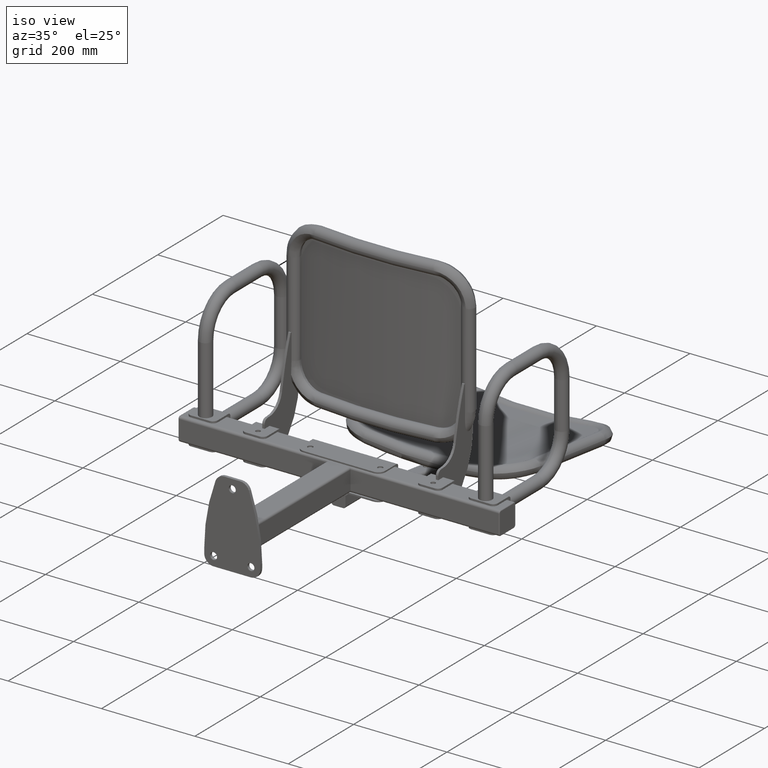
[diagram: clean part render]
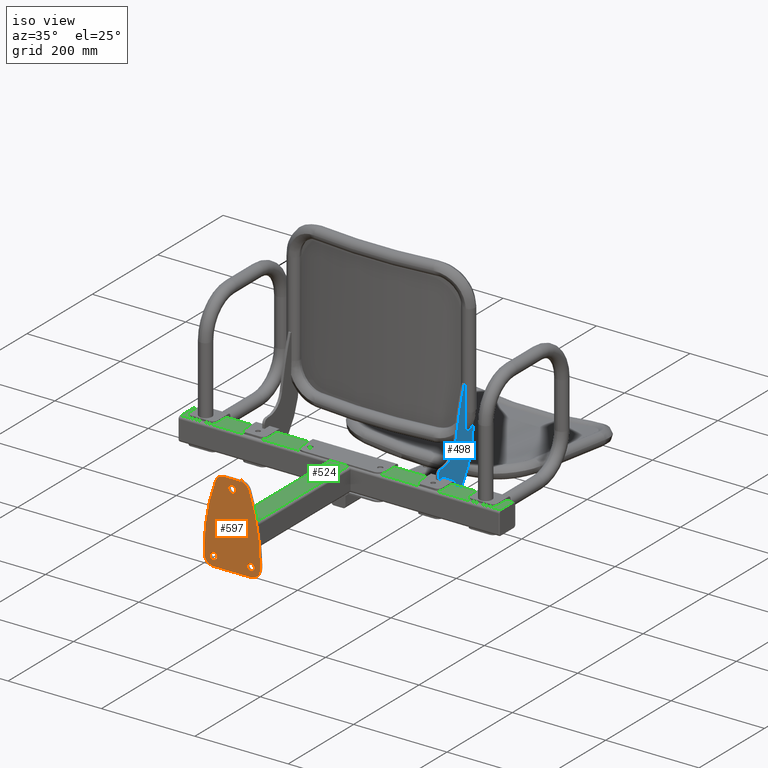
[diagram: same view with three faces highlighted in distinct colors, each labeled with its STEP entity id]
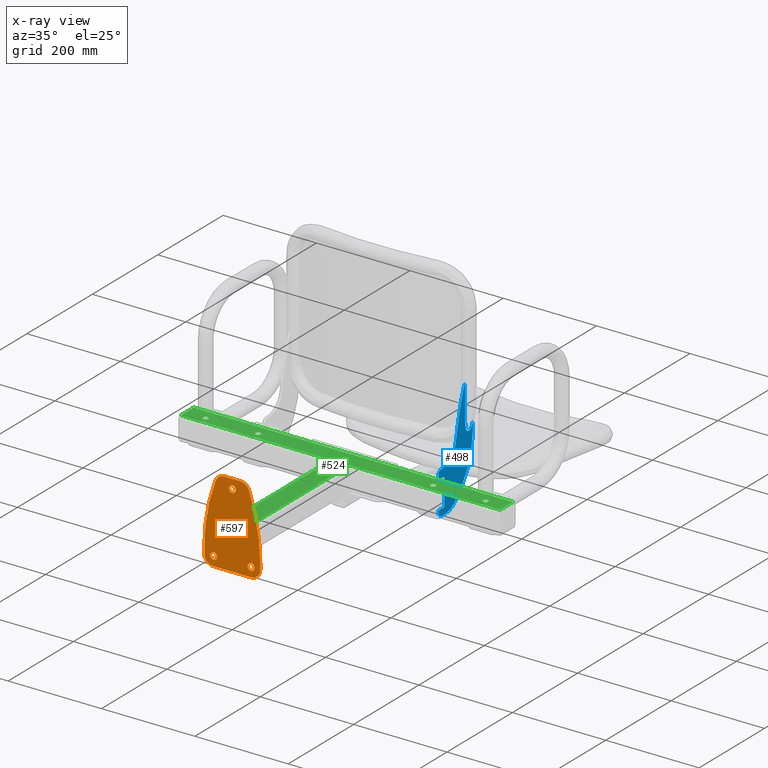
[diagram: x-ray of the same camera — body ghosted, the three highlighted faces saturated]
A machine part, iso view with three faces highlighted in distinct colors.
The next image is the same camera in x-ray (body ghosted, the three faces saturated) — at least one of them is partly hidden behind the body in this view.
Their STEP definitions:

[orange] entity #597 — the highlighted planar face has unit normal (0, -1, 0).
#281 = ORIENTED_EDGE ( 'NONE', *, *, #2310, .T. ) ;
#287 = ORIENTED_EDGE ( 'NONE', *, *, #15020, .F. ) ;
#305 = ORIENTED_EDGE ( 'NONE', *, *, #15016, .F. ) ;
#307 = ORIENTED_EDGE ( 'NONE', *, *, #15019, .T. ) ;
#316 = ORIENTED_EDGE ( 'NONE', *, *, #2320, .F. ) ;
#332 = ORIENTED_EDGE ( 'NONE', *, *, #11711, .F. ) ;
#333 = ORIENTED_EDGE ( 'NONE', *, *, #2321, .F. ) ;
#334 = ORIENTED_EDGE ( 'NONE', *, *, #15021, .F. ) ;
#335 = ORIENTED_EDGE ( 'NONE', *, *, #15023, .F. ) ;
#340 = ORIENTED_EDGE ( 'NONE', *, *, #11737, .F. ) ;
#348 = ORIENTED_EDGE ( 'NONE', *, *, #2309, .T. ) ;
#349 = ORIENTED_EDGE ( 'NONE', *, *, #2306, .F. ) ;
#356 = ORIENTED_EDGE ( 'NONE', *, *, #2305, .T. ) ;
#358 = ORIENTED_EDGE ( 'NONE', *, *, #2315, .F. ) ;
#361 = ORIENTED_EDGE ( 'NONE', *, *, #15832, .F. ) ;
#362 = ORIENTED_EDGE ( 'NONE', *, *, #15022, .F. ) ;
#597 = ADVANCED_FACE ( 'NONE', ( #1809, #1811, #1804, #1810 ), #8171, .T. ) ;
#824 = CIRCLE ( 'NONE', #15550, 7.500000000000000000 ) ;
#993 = AXIS2_PLACEMENT_3D ( 'NONE', #4835, #4836, #4837 ) ;
#996 = AXIS2_PLACEMENT_3D ( 'NONE', #4832, #4833, #4834 ) ;
#999 = AXIS2_PLACEMENT_3D ( 'NONE', #4827, #4828, #4829 ) ;
#1804 = FACE_BOUND ( 'NONE', #11912, .T. ) ;
#1809 = FACE_BOUND ( 'NONE', #11874, .T. ) ;
#1810 = FACE_OUTER_BOUND ( 'NONE', #11909, .T. ) ;
#1811 = FACE_BOUND ( 'NONE', #11884, .T. ) ;
#2305 = EDGE_CURVE ( 'NONE', #10431, #10420, #6522, .T. ) ;
#2306 = EDGE_CURVE ( 'NONE', #10417, #10347, #6529, .T. ) ;
#2309 = EDGE_CURVE ( 'NONE', #10392, #10347, #6531, .T. ) ;
#2310 = EDGE_CURVE ( 'NONE', #10377, #10306, #6535, .T. ) ;
#2315 = EDGE_CURVE ( 'NONE', #10421, #10306, #6541, .T. ) ;
#2320 = EDGE_CURVE ( 'NONE', #10431, #10417, #6551, .T. ) ;
#2321 = EDGE_CURVE ( 'NONE', #10392, #10359, #6553, .T. ) ;
#3516 = CARTESIAN_POINT ( 'NONE',  ( -40.00000000000002800, 0.0000000000000000000, -39.99999999999996400 ) ) ;
#3517 = DIRECTION ( 'NONE',  ( -0.0000000000000000000, -1.000000000000000000, 0.0000000000000000000 ) ) ;
#3518 = DIRECTION ( 'NONE',  ( 0.0000000000000000000, 0.0000000000000000000, -1.000000000000000000 ) ) ;
#3520 = CARTESIAN_POINT ( 'NONE',  ( 339.9999999999999400, 0.0000000000000000000, -29.99999999999998600 ) ) ;
#3521 = DIRECTION ( 'NONE',  ( 0.0000000000000000000, 1.000000000000000000, -0.0000000000000000000 ) ) ;
#3522 = DIRECTION ( 'NONE',  ( 0.0000000000000000000, 0.0000000000000000000, -1.000000000000000000 ) ) ;
#3528 = CARTESIAN_POINT ( 'NONE',  ( -17.07142142714251800, 0.0000000000000000000, 100.0000000000000100 ) ) ;
#3529 = DIRECTION ( 'NONE',  ( -0.0000000000000000000, -1.000000000000000000, 0.0000000000000000000 ) ) ;
#3530 = DIRECTION ( 'NONE',  ( 0.0000000000000000000, 0.0000000000000000000, -1.000000000000000000 ) ) ;
#3531 = CARTESIAN_POINT ( 'NONE',  ( 40.00000000000003600, 0.0000000000000000000, -39.99999999999997900 ) ) ;
#3532 = DIRECTION ( 'NONE',  ( -0.0000000000000000000, -1.000000000000000000, 0.0000000000000000000 ) ) ;
#3533 = DIRECTION ( 'NONE',  ( 0.0000000000000000000, 0.0000000000000000000, -1.000000000000000000 ) ) ;
#3544 = CARTESIAN_POINT ( 'NONE',  ( 60.00000000000000000, 0.0000000000000000000, 120.0000000000000100 ) ) ;
#3546 = DIRECTION ( 'NONE',  ( 2.312964634635743000E-016, 0.0000000000000000000, -1.000000000000000000 ) ) ;
#3553 = CARTESIAN_POINT ( 'NONE',  ( -60.00000000000000000, 0.0000000000000000000, 120.0000000000000100 ) ) ;
#3554 = DIRECTION ( 'NONE',  ( 2.312964634635743000E-016, -0.0000000000000000000, 1.000000000000000000 ) ) ;
#3555 = CARTESIAN_POINT ( 'NONE',  ( 60.00000000000000000, 0.0000000000000000000, 120.0000000000000100 ) ) ;
#3556 = DIRECTION ( 'NONE',  ( 1.000000000000000000, -0.0000000000000000000, -0.0000000000000000000 ) ) ;
#4825 = CARTESIAN_POINT ( 'NONE',  ( 60.00000000000004300, 0.0000000000000000000, -59.99999999999998600 ) ) ;
#4826 = DIRECTION ( 'NONE',  ( -1.000000000000000000, 0.0000000000000000000, 0.0000000000000000000 ) ) ;
#4827 = CARTESIAN_POINT ( 'NONE',  ( -40.00000000000002800, 0.0000000000000000000, -39.99999999999996400 ) ) ;
#4828 = DIRECTION ( 'NONE',  ( -0.0000000000000000000, -1.000000000000000000, 0.0000000000000000000 ) ) ;
#4829 = DIRECTION ( 'NONE',  ( 0.0000000000000000000, 0.0000000000000000000, -1.000000000000000000 ) ) ;
#4832 = CARTESIAN_POINT ( 'NONE',  ( 17.07142142714251800, 0.0000000000000000000, 100.0000000000000100 ) ) ;
#4833 = DIRECTION ( 'NONE',  ( -0.0000000000000000000, -1.000000000000000000, 0.0000000000000000000 ) ) ;
#4834 = DIRECTION ( 'NONE',  ( 0.0000000000000000000, 0.0000000000000000000, -1.000000000000000000 ) ) ;
#4835 = CARTESIAN_POINT ( 'NONE',  ( -339.9999999999999400, 0.0000000000000000000, -29.99999999999998600 ) ) ;
#4836 = DIRECTION ( 'NONE',  ( 0.0000000000000000000, 1.000000000000000000, -0.0000000000000000000 ) ) ;
#4837 = DIRECTION ( 'NONE',  ( 2.636779683484746800E-015, 0.0000000000000000000, -1.000000000000000000 ) ) ;
#4840 = CARTESIAN_POINT ( 'NONE',  ( 0.0000000000000000000, 0.0000000000000000000, 100.0000000000000000 ) ) ;
#4841 = DIRECTION ( 'NONE',  ( -0.0000000000000000000, -1.000000000000000000, 0.0000000000000000000 ) ) ;
#4842 = DIRECTION ( 'NONE',  ( 0.0000000000000000000, 0.0000000000000000000, -1.000000000000000000 ) ) ;
#4845 = CARTESIAN_POINT ( 'NONE',  ( 40.00000000000003600, 0.0000000000000000000, -39.99999999999997900 ) ) ;
#4846 = DIRECTION ( 'NONE',  ( -0.0000000000000000000, -1.000000000000000000, 0.0000000000000000000 ) ) ;
#4847 = DIRECTION ( 'NONE',  ( 0.0000000000000000000, 0.0000000000000000000, -1.000000000000000000 ) ) ;
#6522 = CIRCLE ( 'NONE', #8637, 20.00000000000000400 ) ;
#6529 = CIRCLE ( 'NONE', #8638, 400.0000000000000000 ) ;
#6531 = CIRCLE ( 'NONE', #8640, 20.00000000000000400 ) ;
#6535 = CIRCLE ( 'NONE', #8641, 20.00000000000000400 ) ;
#6541 = LINE ( 'NONE', #3544, #6544 ) ;
#6544 = VECTOR ( 'NONE', #3546, 1000.000000000000000 ) ;
#6551 = LINE ( 'NONE', #3553, #6554 ) ;
#6553 = LINE ( 'NONE', #3555, #6556 ) ;
#6554 = VECTOR ( 'NONE', #3554, 1000.000000000000000 ) ;
#6556 = VECTOR ( 'NONE', #3556, 1000.000000000000000 ) ;
#6847 = CARTESIAN_POINT ( 'NONE',  ( 0.0000000000000000000, 0.0000000000000000000, 100.0000000000000000 ) ) ;
#6849 = DIRECTION ( 'NONE',  ( -0.0000000000000000000, -1.000000000000000000, 0.0000000000000000000 ) ) ;
#6850 = DIRECTION ( 'NONE',  ( 0.0000000000000000000, 0.0000000000000000000, -1.000000000000000000 ) ) ;
#7602 = CIRCLE ( 'NONE', #999, 7.500000000000000000 ) ;
#7611 = CIRCLE ( 'NONE', #996, 20.00000000000000400 ) ;
#7613 = LINE ( 'NONE', #4825, #7615 ) ;
#7614 = CIRCLE ( 'NONE', #993, 400.0000000000000000 ) ;
#7615 = VECTOR ( 'NONE', #4826, 1000.000000000000000 ) ;
#7616 = CIRCLE ( 'NONE', #16751, 7.500000000000007100 ) ;
#7617 = CIRCLE ( 'NONE', #15466, 7.500000000000000000 ) ;
#8167 = CARTESIAN_POINT ( 'NONE',  ( -60.00000000000000000, 0.0000000000000000000, 120.0000000000000100 ) ) ;
#8168 = DIRECTION ( 'NONE',  ( 0.0000000000000000000, -1.000000000000000000, 0.0000000000000000000 ) ) ;
#8171 = PLANE ( 'NONE',  #8599 ) ;
#8174 = DIRECTION ( 'NONE',  ( 0.0000000000000000000, -0.0000000000000000000, -1.000000000000000000 ) ) ;
#8599 = AXIS2_PLACEMENT_3D ( 'NONE', #8167, #8168, #8174 ) ;
#8637 = AXIS2_PLACEMENT_3D ( 'NONE', #3516, #3517, #3518 ) ;
#8638 = AXIS2_PLACEMENT_3D ( 'NONE', #3520, #3521, #3522 ) ;
#8640 = AXIS2_PLACEMENT_3D ( 'NONE', #3528, #3529, #3530 ) ;
#8641 = AXIS2_PLACEMENT_3D ( 'NONE', #3531, #3532, #3533 ) ;
#9551 = CIRCLE ( 'NONE', #16642, 7.500000000000000000 ) ;
#9586 = CIRCLE ( 'NONE', #16653, 7.500000000000007100 ) ;
#10306 = VERTEX_POINT ( 'NONE', #14061 ) ;
#10321 = VERTEX_POINT ( 'NONE', #14076 ) ;
#10327 = VERTEX_POINT ( 'NONE', #14082 ) ;
#10347 = VERTEX_POINT ( 'NONE', #14102 ) ;
#10359 = VERTEX_POINT ( 'NONE', #14114 ) ;
#10377 = VERTEX_POINT ( 'NONE', #14132 ) ;
#10379 = VERTEX_POINT ( 'NONE', #14134 ) ;
#10380 = VERTEX_POINT ( 'NONE', #14135 ) ;
#10392 = VERTEX_POINT ( 'NONE', #14147 ) ;
#10405 = VERTEX_POINT ( 'NONE', #14160 ) ;
#10417 = VERTEX_POINT ( 'NONE', #14172 ) ;
#10420 = VERTEX_POINT ( 'NONE', #14175 ) ;
#10421 = VERTEX_POINT ( 'NONE', #14176 ) ;
#10422 = VERTEX_POINT ( 'NONE', #14177 ) ;
#10425 = VERTEX_POINT ( 'NONE', #14180 ) ;
#10431 = VERTEX_POINT ( 'NONE', #14186 ) ;
#11711 = EDGE_CURVE ( 'NONE', #10379, #10327, #9551, .T. ) ;
#11737 = EDGE_CURVE ( 'NONE', #10380, #10425, #9586, .T. ) ;
#11874 = EDGE_LOOP ( 'NONE', ( #340, #362 ) ) ;
#11884 = EDGE_LOOP ( 'NONE', ( #361, #335 ) ) ;
#11909 = EDGE_LOOP ( 'NONE', ( #334, #307, #333, #348, #349, #316, #356, #287, #281, #358 ) ) ;
#11912 = EDGE_LOOP ( 'NONE', ( #332, #305 ) ) ;
#12628 = CARTESIAN_POINT ( 'NONE',  ( -40.00000000000002800, 0.0000000000000000000, -39.99999999999996400 ) ) ;
#12629 = DIRECTION ( 'NONE',  ( -0.0000000000000000000, -1.000000000000000000, 0.0000000000000000000 ) ) ;
#12630 = DIRECTION ( 'NONE',  ( 0.0000000000000000000, 0.0000000000000000000, -1.000000000000000000 ) ) ;
#13018 = CARTESIAN_POINT ( 'NONE',  ( 40.00000000000003600, 0.0000000000000000000, -39.99999999999997900 ) ) ;
#13019 = DIRECTION ( 'NONE',  ( -0.0000000000000000000, -1.000000000000000000, 0.0000000000000000000 ) ) ;
#13020 = DIRECTION ( 'NONE',  ( 0.0000000000000000000, 0.0000000000000000000, -1.000000000000000000 ) ) ;
#14061 = CARTESIAN_POINT ( 'NONE',  ( 60.00000000000003600, 0.0000000000000000000, -39.99999999999990800 ) ) ;
#14076 = CARTESIAN_POINT ( 'NONE',  ( 40.00000000000003600, 0.0000000000000000000, -47.49999999999997900 ) ) ;
#14082 = CARTESIAN_POINT ( 'NONE',  ( -40.00000000000002800, 0.0000000000000000000, -47.49999999999996400 ) ) ;
#14102 = CARTESIAN_POINT ( 'NONE',  ( -35.86465413383421500, 0.0000000000000000000, 106.8421052631579500 ) ) ;
#14114 = CARTESIAN_POINT ( 'NONE',  ( 17.07142142714251800, 0.0000000000000000000, 120.0000000000000100 ) ) ;
#14132 = CARTESIAN_POINT ( 'NONE',  ( 40.00000000000003600, 0.0000000000000000000, -59.99999999999998600 ) ) ;
#14134 = CARTESIAN_POINT ( 'NONE',  ( -40.00000000000002800, 0.0000000000000000000, -32.49999999999996400 ) ) ;
#14135 = CARTESIAN_POINT ( 'NONE',  ( 0.0000000000000000000, 0.0000000000000000000, 107.5000000000000100 ) ) ;
#14147 = CARTESIAN_POINT ( 'NONE',  ( -17.07142142714251800, 0.0000000000000000000, 120.0000000000000100 ) ) ;
#14160 = CARTESIAN_POINT ( 'NONE',  ( 40.00000000000003600, 0.0000000000000000000, -32.49999999999997900 ) ) ;
#14172 = CARTESIAN_POINT ( 'NONE',  ( -60.00000000000003600, 0.0000000000000000000, -29.99999999999992900 ) ) ;
#14175 = CARTESIAN_POINT ( 'NONE',  ( -40.00000000000002100, 0.0000000000000000000, -59.99999999999998600 ) ) ;
#14176 = CARTESIAN_POINT ( 'NONE',  ( 60.00000000000004300, 0.0000000000000000000, -29.99999999999998600 ) ) ;
#14177 = CARTESIAN_POINT ( 'NONE',  ( 35.86465413383421500, 0.0000000000000000000, 106.8421052631579500 ) ) ;
#14180 = CARTESIAN_POINT ( 'NONE',  ( 9.184850993605149900E-016, 0.0000000000000000000, 92.50000000000000000 ) ) ;
#14186 = CARTESIAN_POINT ( 'NONE',  ( -60.00000000000003600, 0.0000000000000000000, -39.99999999999990800 ) ) ;
#15016 = EDGE_CURVE ( 'NONE', #10327, #10379, #7602, .T. ) ;
#15019 = EDGE_CURVE ( 'NONE', #10422, #10359, #7611, .T. ) ;
#15020 = EDGE_CURVE ( 'NONE', #10377, #10420, #7613, .T. ) ;
#15021 = EDGE_CURVE ( 'NONE', #10422, #10421, #7614, .T. ) ;
#15022 = EDGE_CURVE ( 'NONE', #10425, #10380, #7616, .T. ) ;
#15023 = EDGE_CURVE ( 'NONE', #10321, #10405, #7617, .T. ) ;
#15466 = AXIS2_PLACEMENT_3D ( 'NONE', #4845, #4846, #4847 ) ;
#15550 = AXIS2_PLACEMENT_3D ( 'NONE', #13018, #13019, #13020 ) ;
#15832 = EDGE_CURVE ( 'NONE', #10405, #10321, #824, .T. ) ;
#16642 = AXIS2_PLACEMENT_3D ( 'NONE', #12628, #12629, #12630 ) ;
#16653 = AXIS2_PLACEMENT_3D ( 'NONE', #6847, #6849, #6850 ) ;
#16751 = AXIS2_PLACEMENT_3D ( 'NONE', #4840, #4841, #4842 ) ;

[blue] entity #498 — the highlighted planar face has unit normal (1, 0, 0).
#498 = ADVANCED_FACE ( 'NONE', ( #1639 ), #9728, .T. ) ;
#830 = LINE ( 'NONE', #13026, #833 ) ;
#833 = VECTOR ( 'NONE', #13027, 1000.000000000000000 ) ;
#836 = LINE ( 'NONE', #13032, #839 ) ;
#839 = VECTOR ( 'NONE', #13033, 1000.000000000000000 ) ;
#844 = CIRCLE ( 'NONE', #15552, 10.00000000000000900 ) ;
#849 = LINE ( 'NONE', #13044, #851 ) ;
#851 = VECTOR ( 'NONE', #13040, 1000.000000000000000 ) ;
#854 = CIRCLE ( 'NONE', #15554, 40.00000000000003600 ) ;
#859 = LINE ( 'NONE', #13058, #861 ) ;
#861 = VECTOR ( 'NONE', #13054, 999.9999999999998900 ) ;
#864 = CIRCLE ( 'NONE', #15556, 600.0000000000001100 ) ;
#869 = LINE ( 'NONE', #13068, #871 ) ;
#871 = VECTOR ( 'NONE', #13069, 1000.000000000000000 ) ;
#874 = LINE ( 'NONE', #13082, #877 ) ;
#877 = VECTOR ( 'NONE', #13083, 1000.000000000000000 ) ;
#1639 = FACE_OUTER_BOUND ( 'NONE', #6703, .T. ) ;
#1938 = ORIENTED_EDGE ( 'NONE', *, *, #15384, .T. ) ;
#1939 = ORIENTED_EDGE ( 'NONE', *, *, #10029, .T. ) ;
#1940 = ORIENTED_EDGE ( 'NONE', *, *, #15858, .T. ) ;
#1941 = ORIENTED_EDGE ( 'NONE', *, *, #15855, .T. ) ;
#1942 = ORIENTED_EDGE ( 'NONE', *, *, #15852, .T. ) ;
#1943 = ORIENTED_EDGE ( 'NONE', *, *, #15849, .T. ) ;
#1944 = ORIENTED_EDGE ( 'NONE', *, *, #15846, .T. ) ;
#1945 = ORIENTED_EDGE ( 'NONE', *, *, #15843, .T. ) ;
#1946 = ORIENTED_EDGE ( 'NONE', *, *, #15839, .T. ) ;
#1947 = ORIENTED_EDGE ( 'NONE', *, *, #2273, .T. ) ;
#1948 = ORIENTED_EDGE ( 'NONE', *, *, #2274, .T. ) ;
#1949 = ORIENTED_EDGE ( 'NONE', *, *, #2275, .T. ) ;
#1950 = ORIENTED_EDGE ( 'NONE', *, *, #2276, .T. ) ;
#1951 = ORIENTED_EDGE ( 'NONE', *, *, #2277, .T. ) ;
#1952 = ORIENTED_EDGE ( 'NONE', *, *, #15836, .T. ) ;
#1953 = ORIENTED_EDGE ( 'NONE', *, *, #14805, .T. ) ;
#1954 = ORIENTED_EDGE ( 'NONE', *, *, #14802, .T. ) ;
#1955 = ORIENTED_EDGE ( 'NONE', *, *, #14799, .T. ) ;
#1956 = ORIENTED_EDGE ( 'NONE', *, *, #14795, .T. ) ;
#1957 = ORIENTED_EDGE ( 'NONE', *, *, #15861, .T. ) ;
#1958 = ORIENTED_EDGE ( 'NONE', *, *, #15025, .T. ) ;
#1959 = ORIENTED_EDGE ( 'NONE', *, *, #14779, .T. ) ;
#2273 = EDGE_CURVE ( 'NONE', #11549, #11487, #6476, .T. ) ;
#2274 = EDGE_CURVE ( 'NONE', #11487, #11521, #6471, .T. ) ;
#2275 = EDGE_CURVE ( 'NONE', #11521, #11441, #6479, .T. ) ;
#2276 = EDGE_CURVE ( 'NONE', #11441, #11597, #6480, .T. ) ;
#2277 = EDGE_CURVE ( 'NONE', #11597, #11574, #6482, .T. ) ;
#3917 = CARTESIAN_POINT ( 'NONE',  ( 188.5000000000000000, -84.20000000000003100, -200.5000000000000000 ) ) ;
#3918 = DIRECTION ( 'NONE',  ( -0.0000000000000000000, 1.000000000000000000, -0.0000000000000000000 ) ) ;
#3922 = DIRECTION ( 'NONE',  ( 0.0000000000000000000, 0.0000000000000000000, -1.000000000000000000 ) ) ;
#3926 = CARTESIAN_POINT ( 'NONE',  ( 188.5000000000000000, -79.20000000000001700, -205.5000000000000300 ) ) ;
#3927 = CARTESIAN_POINT ( 'NONE',  ( 188.5000000000000000, -84.20000000000003100, -259.5000000000000000 ) ) ;
#3928 = DIRECTION ( 'NONE',  ( 0.0000000000000000000, -1.000000000000000000, 0.0000000000000000000 ) ) ;
#3929 = CARTESIAN_POINT ( 'NONE',  ( 188.5000000000000000, -84.20000000000003100, -205.5000000000000300 ) ) ;
#3930 = DIRECTION ( 'NONE',  ( -1.000000000000000000, -0.0000000000000000000, -0.0000000000000000000 ) ) ;
#3931 = DIRECTION ( 'NONE',  ( 0.0000000000000000000, 0.0000000000000000000, -1.000000000000000000 ) ) ;
#3933 = CARTESIAN_POINT ( 'NONE',  ( 188.5000000000000000, -84.20000000000003100, -254.5000000000000600 ) ) ;
#3934 = DIRECTION ( 'NONE',  ( -1.000000000000000000, -0.0000000000000000000, -0.0000000000000000000 ) ) ;
#3935 = DIRECTION ( 'NONE',  ( 0.0000000000000000000, 0.0000000000000000000, -1.000000000000000000 ) ) ;
#4445 = CARTESIAN_POINT ( 'NONE',  ( 188.5000000000000000, -16.18714600717548900, -111.3327023491380500 ) ) ;
#4446 = CARTESIAN_POINT ( 'NONE',  ( 188.4999999999999100, -16.18714600717551000, -109.4438926527482200 ) ) ;
#4451 = CARTESIAN_POINT ( 'NONE',  ( 188.5000000000000000, -16.17404433174595000, -107.5551315393772700 ) ) ;
#4452 = CARTESIAN_POINT ( 'NONE',  ( 188.4999999999999700, -16.15302396899038900, -103.7775900933241900 ) ) ;
#4453 = CARTESIAN_POINT ( 'NONE',  ( 188.5000000000000000, -16.14512260786883500, -101.8888096963918700 ) ) ;
#4454 = CARTESIAN_POINT ( 'NONE',  ( 188.5000000000000000, -16.14512260786879900, -100.0000000000000000 ) ) ;
#4575 = CARTESIAN_POINT ( 'NONE',  ( 188.5000000000000000, -151.9507844656976900, -141.0922452028078200 ) ) ;
#4576 = DIRECTION ( 'NONE',  ( 1.000000000000000000, 0.0000000000000000000, 0.0000000000000000000 ) ) ;
#4577 = DIRECTION ( 'NONE',  ( 0.0000000000000000000, 0.0000000000000000000, -1.000000000000000000 ) ) ;
#4585 = DIRECTION ( 'NONE',  ( 0.0000000000000000000, 1.000000000000000000, 0.0000000000000000000 ) ) ;
#4586 = CARTESIAN_POINT ( 'NONE',  ( 188.5000000000000000, -75.39487774817524700, -233.5000000000000000 ) ) ;
#4587 = DIRECTION ( 'NONE',  ( 1.000000000000000000, 0.0000000000000000000, 0.0000000000000000000 ) ) ;
#4588 = DIRECTION ( 'NONE',  ( 0.0000000000000000000, 0.0000000000000000000, -1.000000000000000000 ) ) ;
#4589 = CARTESIAN_POINT ( 'NONE',  ( 188.5000000000000000, -88.20000000000000300, -273.5000000000000000 ) ) ;
#4599 = CARTESIAN_POINT ( 'NONE',  ( 188.5000000000000000, -88.20000000000000300, -263.5000000000000000 ) ) ;
#4600 = DIRECTION ( 'NONE',  ( 1.000000000000000000, 0.0000000000000000000, 0.0000000000000000000 ) ) ;
#4601 = DIRECTION ( 'NONE',  ( 0.0000000000000000000, 0.0000000000000000000, -1.000000000000000000 ) ) ;
#4838 = CARTESIAN_POINT ( 'NONE',  ( 188.5000000000000000, 8.000000000000008900, -125.8690434776537300 ) ) ;
#4839 = CARTESIAN_POINT ( 'NONE',  ( 188.5000000000000600, 7.595532328284623900, -127.3431544477349500 ) ) ;
#4862 = CARTESIAN_POINT ( 'NONE',  ( 188.5000000000000300, 7.120835867394567300, -128.7877714865549000 ) ) ;
#4863 = CARTESIAN_POINT ( 'NONE',  ( 188.4999999999999700, 5.978687847930533600, -131.5960543521896400 ) ) ;
#4864 = CARTESIAN_POINT ( 'NONE',  ( 188.5000000000000600, 5.313039918323779500, -132.9604776476921900 ) ) ;
#4865 = CARTESIAN_POINT ( 'NONE',  ( 188.5000000000000000, 4.097015726405204300, -134.9157473177603200 ) ) ;
#4866 = CARTESIAN_POINT ( 'NONE',  ( 188.5000000000000000, 3.659018968058220400, -135.5447887560119400 ) ) ;
#4867 = CARTESIAN_POINT ( 'NONE',  ( 188.5000000000000300, 2.708957362497472300, -136.7388262490283600 ) ) ;
#4868 = CARTESIAN_POINT ( 'NONE',  ( 188.5000000000000000, 2.196390778813207300, -137.3052550672746000 ) ) ;
#4869 = CARTESIAN_POINT ( 'NONE',  ( 188.5000000000000000, 1.073113382847607600, -138.3581296891659600 ) ) ;
#4870 = CARTESIAN_POINT ( 'NONE',  ( 188.5000000000000300, 0.4737230970270738800, -138.8336210869698800 ) ) ;
#4871 = CARTESIAN_POINT ( 'NONE',  ( 188.4999999999999700, -0.4909052056714181000, -139.4472078727176600 ) ) ;
#4872 = CARTESIAN_POINT ( 'NONE',  ( 188.4999999999999400, -0.8236749182118595600, -139.6352350648472800 ) ) ;
#4873 = CARTESIAN_POINT ( 'NONE',  ( 188.5000000000000900, -1.515384897756355800, -139.9728230993047800 ) ) ;
#4874 = CARTESIAN_POINT ( 'NONE',  ( 188.5000000000000300, -1.873344418931549300, -140.1216353787084800 ) ) ;
#4875 = CARTESIAN_POINT ( 'NONE',  ( 188.5000000000000600, -2.239527957335527600, -140.2454712553749800 ) ) ;
#6111 = DIRECTION ( 'NONE',  ( 0.0000000000000000000, 0.0000000000000000000, 1.000000000000000000 ) ) ;
#6118 = CARTESIAN_POINT ( 'NONE',  ( 188.5000000000000000, -16.14512260786879600, 175.0000000000000000 ) ) ;
#6471 = CIRCLE ( 'NONE', #8626, 5.000000000000004400 ) ;
#6476 = LINE ( 'NONE', #3917, #6478 ) ;
#6478 = VECTOR ( 'NONE', #3918, 1000.000000000000000 ) ;
#6479 = LINE ( 'NONE', #3926, #6481 ) ;
#6480 = CIRCLE ( 'NONE', #8627, 5.000000000000004400 ) ;
#6481 = VECTOR ( 'NONE', #3922, 1000.000000000000000 ) ;
#6482 = LINE ( 'NONE', #3927, #6484 ) ;
#6484 = VECTOR ( 'NONE', #3928, 1000.000000000000000 ) ;
#6703 = EDGE_LOOP ( 'NONE', ( #1938, #1939, #1940, #1941, #1942, #1943, #1944, #1945, #1946, #1947, #1948, #1949, #1950, #1951, #1952, #1953, #1954, #1955, #1956, #1957, #1958, #1959 ) ) ;
#6851 = B_SPLINE_CURVE_WITH_KNOTS ( 'NONE', 3,
 ( #4445, #4446, #4451, #4452, #4453, #4454 ),
 .UNSPECIFIED., .F., .F.,
 ( 4, 2, 4 ),
 ( 2.012291195707712000E-015, 0.005666390131740386300, 0.01133278026347876000 ),
 .UNSPECIFIED. ) ;
#6919 = B_SPLINE_CURVE_WITH_KNOTS ( 'NONE', 3,
 ( #7432, #7431, #7437, #7438, #7439, #7440, #7441, #7442, #7443, #7444, #7445, #7446, #7447, #7448, #7449, #7450, #7451, #7452, #7453, #7454, #7455, #7456, #7457, #7458, #7459, #7460, #7461, #7462, #7463, #7464, #7465, #7466, #7467, #7468, #7469, #7470 ),
 .UNSPECIFIED., .F., .F.,
 ( 4, 2, 2, 2, 2, 2, 2, 2, 2, 2, 2, 2, 2, 2, 2, 2, 2, 4 ),
 ( 1.628447120362410900E-016, 0.002320731198856814200, 0.002900913998570977000, 0.003481096798285140200, 0.004641462397713466200, 0.005801827997141791700, 0.006962193596570119900, 0.008122559195998448100, 0.009282924795426776200, 0.01044329039485510300, 0.01160365599428343100, 0.01392438719314015800, 0.01624511839199688200, 0.01856584959085361100, 0.02320731198856698300, 0.02784877438628035800, 0.03249023678399373000, 0.03713169918170709800 ),
 .UNSPECIFIED. ) ;
#6955 = B_SPLINE_CURVE_WITH_KNOTS ( 'NONE', 3,
 ( #4838, #4839, #4862, #4863, #4864, #4865, #4866, #4867, #4868, #4869, #4870, #4871, #4872, #4873, #4874, #4875 ),
 .UNSPECIFIED., .F., .F.,
 ( 4, 2, 2, 2, 2, 2, 2, 4 ),
 ( 0.0000000000000000000, 0.004547196395380773100, 0.009094392790761546300, 0.01136799098845196800, 0.01364158918614238900, 0.01591518738383281000, 0.01705198648267802100, 0.01818878558152323100 ),
 .UNSPECIFIED. ) ;
#7195 = CARTESIAN_POINT ( 'NONE',  ( 188.5000000000000000, -16.14512260786879900, -100.0000000000000000 ) ) ;
#7208 = CARTESIAN_POINT ( 'NONE',  ( 188.5000000000000000, -18.50000000000000000, -45.00000000000001400 ) ) ;
#7210 = CARTESIAN_POINT ( 'NONE',  ( 188.5000000000000000, -40.83472811329014000, -128.0311954609948100 ) ) ;
#7431 = CARTESIAN_POINT ( 'NONE',  ( 188.4999999999999100, -2.982299271356772000, -140.4966615115943100 ) ) ;
#7432 = CARTESIAN_POINT ( 'NONE',  ( 188.5000000000000600, -2.239527957335527600, -140.2454712553749800 ) ) ;
#7437 = CARTESIAN_POINT ( 'NONE',  ( 188.4999999999999700, -3.742454956324091400, -140.6415648580986900 ) ) ;
#7438 = CARTESIAN_POINT ( 'NONE',  ( 188.4999999999999700, -4.717701908549875300, -140.6695256322283600 ) ) ;
#7439 = CARTESIAN_POINT ( 'NONE',  ( 188.5000000000000600, -4.914725016098463700, -140.6672726205899300 ) ) ;
#7440 = CARTESIAN_POINT ( 'NONE',  ( 188.5000000000000000, -5.304260393290308100, -140.6469494410572200 ) ) ;
#7441 = CARTESIAN_POINT ( 'NONE',  ( 188.4999999999999700, -5.497496575781795500, -140.6289559520299700 ) ) ;
#7442 = CARTESIAN_POINT ( 'NONE',  ( 188.5000000000000000, -6.072702415483328200, -140.5519492929032900 ) ) ;
#7443 = CARTESIAN_POINT ( 'NONE',  ( 188.4999999999999400, -6.450180937487275800, -140.4699691111808300 ) ) ;
#7444 = CARTESIAN_POINT ( 'NONE',  ( 188.5000000000000300, -7.193344373303288500, -140.2456979523606200 ) ) ;
#7445 = CARTESIAN_POINT ( 'NONE',  ( 188.5000000000000000, -7.561192431641114100, -140.1019547362379900 ) ) ;
#7446 = CARTESIAN_POINT ( 'NONE',  ( 188.5000000000000300, -8.262918956685654200, -139.7654611950739000 ) ) ;
#7447 = CARTESIAN_POINT ( 'NONE',  ( 188.5000000000000000, -8.599390028368684800, -139.5723197829895000 ) ) ;
#7448 = CARTESIAN_POINT ( 'NONE',  ( 188.4999999999999100, -9.246389361304595800, -139.1411628342046100 ) ) ;
#7449 = CARTESIAN_POINT ( 'NONE',  ( 188.5000000000000000, -9.558623034075363700, -138.9014422473562100 ) ) ;
#7450 = CARTESIAN_POINT ( 'NONE',  ( 188.5000000000000300, -10.14663713906420900, -138.3918229064520600 ) ) ;
#7451 = CARTESIAN_POINT ( 'NONE',  ( 188.5000000000000600, -10.42351970299550200, -138.1215877151022900 ) ) ;
#7452 = CARTESIAN_POINT ( 'NONE',  ( 188.4999999999999400, -10.94802033035737700, -137.5547562435814700 ) ) ;
#7453 = CARTESIAN_POINT ( 'NONE',  ( 188.4999999999999700, -11.19561455754225000, -137.2581384920243300 ) ) ;
#7454 = CARTESIAN_POINT ( 'NONE',  ( 188.4999999999999400, -11.66503949488474800, -136.6416955413512000 ) ) ;
#7455 = CARTESIAN_POINT ( 'NONE',  ( 188.5000000000000000, -11.88762612438857300, -136.3206144983333600 ) ) ;
#7456 = CARTESIAN_POINT ( 'NONE',  ( 188.4999999999999700, -12.51488667367396000, -135.3354306404751000 ) ) ;
#7457 = CARTESIAN_POINT ( 'NONE',  ( 188.4999999999999700, -12.87753258561449100, -134.6540351417783700 ) ) ;
#7458 = CARTESIAN_POINT ( 'NONE',  ( 188.5000000000000300, -13.52100068888868400, -133.2549852577763300 ) ) ;
#7459 = CARTESIAN_POINT ( 'NONE',  ( 188.5000000000000300, -13.80151843320618200, -132.5371959615947600 ) ) ;
#7460 = CARTESIAN_POINT ( 'NONE',  ( 188.4999999999999400, -14.29796735291513700, -131.0729968535453300 ) ) ;
#7461 = CARTESIAN_POINT ( 'NONE',  ( 188.4999999999999700, -14.51415920495411000, -130.3242664790073800 ) ) ;
#7462 = CARTESIAN_POINT ( 'NONE',  ( 188.4999999999999700, -15.07640951620806500, -128.0786734634544600 ) ) ;
#7463 = CARTESIAN_POINT ( 'NONE',  ( 188.4999999999999700, -15.34213704592567100, -126.5715322220399600 ) ) ;
#7464 = CARTESIAN_POINT ( 'NONE',  ( 188.5000000000000000, -15.74266111175822600, -123.5451543127347500 ) ) ;
#7465 = CARTESIAN_POINT ( 'NONE',  ( 188.5000000000000300, -15.87638575058611300, -122.0258186227984500 ) ) ;
#7466 = CARTESIAN_POINT ( 'NONE',  ( 188.5000000000000300, -16.06343227030336600, -118.9797196230752100 ) ) ;
#7467 = CARTESIAN_POINT ( 'NONE',  ( 188.4999999999999700, -16.11644206580141900, -117.4529274827891900 ) ) ;
#7468 = CARTESIAN_POINT ( 'NONE',  ( 188.4999999999999400, -16.17834289535527100, -114.3952675038621200 ) ) ;
#7469 = CARTESIAN_POINT ( 'NONE',  ( 188.4999999999999700, -16.18714600717547500, -112.8643915429506400 ) ) ;
#7470 = CARTESIAN_POINT ( 'NONE',  ( 188.5000000000000000, -16.18714600717548900, -111.3327023491380500 ) ) ;
#7497 = CIRCLE ( 'NONE', #16725, 40.00000000000000700 ) ;
#7500 = LINE ( 'NONE', #4589, #7503 ) ;
#7503 = VECTOR ( 'NONE', #4585, 1000.000000000000000 ) ;
#7506 = CIRCLE ( 'NONE', #16727, 10.00000000000000900 ) ;
#8504 = AXIS2_PLACEMENT_3D ( 'NONE', #9729, #9734, #9735 ) ;
#8626 = AXIS2_PLACEMENT_3D ( 'NONE', #3929, #3930, #3931 ) ;
#8627 = AXIS2_PLACEMENT_3D ( 'NONE', #3933, #3934, #3935 ) ;
#9728 = PLANE ( 'NONE',  #8504 ) ;
#9729 = CARTESIAN_POINT ( 'NONE',  ( 188.5000000000000000, -151.9507844656976900, -141.0922452028078200 ) ) ;
#9734 = DIRECTION ( 'NONE',  ( 1.000000000000000000, 0.0000000000000000000, 0.0000000000000000000 ) ) ;
#9735 = DIRECTION ( 'NONE',  ( 0.0000000000000000000, 0.0000000000000000000, -1.000000000000000000 ) ) ;
#10029 = EDGE_CURVE ( 'NONE', #11820, #11609, #10779, .T. ) ;
#10779 = LINE ( 'NONE', #6118, #10783 ) ;
#10783 = VECTOR ( 'NONE', #6111, 1000.000000000000000 ) ;
#11381 = VERTEX_POINT ( 'NONE', #14201 ) ;
#11389 = VERTEX_POINT ( 'NONE', #14206 ) ;
#11395 = VERTEX_POINT ( 'NONE', #14199 ) ;
#11441 = VERTEX_POINT ( 'NONE', #14230 ) ;
#11453 = VERTEX_POINT ( 'NONE', #14236 ) ;
#11465 = VERTEX_POINT ( 'NONE', #14242 ) ;
#11487 = VERTEX_POINT ( 'NONE', #14253 ) ;
#11489 = VERTEX_POINT ( 'NONE', #14254 ) ;
#11509 = VERTEX_POINT ( 'NONE', #14264 ) ;
#11521 = VERTEX_POINT ( 'NONE', #14270 ) ;
#11527 = VERTEX_POINT ( 'NONE', #14273 ) ;
#11543 = VERTEX_POINT ( 'NONE', #14281 ) ;
#11548 = CIRCLE ( 'NONE', #16723, 160.0000000000000000 ) ;
#11549 = VERTEX_POINT ( 'NONE', #14284 ) ;
#11573 = VERTEX_POINT ( 'NONE', #14306 ) ;
#11574 = VERTEX_POINT ( 'NONE', #14307 ) ;
#11587 = VERTEX_POINT ( 'NONE', #14320 ) ;
#11597 = VERTEX_POINT ( 'NONE', #14330 ) ;
#11608 = VERTEX_POINT ( 'NONE', #14341 ) ;
#11609 = VERTEX_POINT ( 'NONE', #14342 ) ;
#11820 = VERTEX_POINT ( 'NONE', #7195 ) ;
#11833 = VERTEX_POINT ( 'NONE', #7208 ) ;
#11835 = VERTEX_POINT ( 'NONE', #7210 ) ;
#13026 = CARTESIAN_POINT ( 'NONE',  ( 188.5000000000000000, -98.20000000000000300, -259.5000000000000000 ) ) ;
#13027 = DIRECTION ( 'NONE',  ( 0.0000000000000000000, 0.0000000000000000000, -1.000000000000000000 ) ) ;
#13032 = CARTESIAN_POINT ( 'NONE',  ( 188.5000000000000000, -98.20000000000000300, -192.5000000000000600 ) ) ;
#13033 = DIRECTION ( 'NONE',  ( 0.0000000000000000000, 0.0000000000000000000, -1.000000000000000000 ) ) ;
#13040 = DIRECTION ( 'NONE',  ( 0.0000000000000000000, -1.000000000000000000, 7.255577633195882100E-015 ) ) ;
#13041 = CARTESIAN_POINT ( 'NONE',  ( 188.5000000000000000, -88.20000000000000300, -192.5000000000000600 ) ) ;
#13042 = DIRECTION ( 'NONE',  ( 1.000000000000000000, 0.0000000000000000000, 0.0000000000000000000 ) ) ;
#13043 = DIRECTION ( 'NONE',  ( 0.0000000000000000000, 0.0000000000000000000, -1.000000000000000000 ) ) ;
#13044 = CARTESIAN_POINT ( 'NONE',  ( 188.5000000000000000, -84.37458774217493800, -182.5000000000000900 ) ) ;
#13054 = DIRECTION ( 'NONE',  ( 0.0000000000000000000, -0.1898981595836499400, -0.9818037935283927500 ) ) ;
#13055 = CARTESIAN_POINT ( 'NONE',  ( 188.5000000000000000, -84.37458774217493800, -142.5000000000000600 ) ) ;
#13056 = DIRECTION ( 'NONE',  ( -1.000000000000000000, -0.0000000000000000000, -0.0000000000000000000 ) ) ;
#13057 = DIRECTION ( 'NONE',  ( 0.0000000000000000000, 0.0000000000000000000, -1.000000000000000000 ) ) ;
#13058 = CARTESIAN_POINT ( 'NONE',  ( 188.5000000000000000, -40.83472811329025400, -128.0311954609949800 ) ) ;
#13068 = CARTESIAN_POINT ( 'NONE',  ( 188.5000000000000000, -18.50000000000000000, -45.00000000000001400 ) ) ;
#13069 = DIRECTION ( 'NONE',  ( -0.0000000000000000000, -1.000000000000000000, -2.618450529776312800E-016 ) ) ;
#13070 = CARTESIAN_POINT ( 'NONE',  ( 188.5000000000000000, 548.2475480037456900, -241.9700912111838700 ) ) ;
#13071 = DIRECTION ( 'NONE',  ( 1.000000000000000000, -0.0000000000000000000, -0.0000000000000000000 ) ) ;
#13072 = DIRECTION ( 'NONE',  ( 0.0000000000000000000, 0.0000000000000000000, 1.000000000000000000 ) ) ;
#13082 = CARTESIAN_POINT ( 'NONE',  ( 188.5000000000000000, 8.000000000000000000, -45.00000000000000700 ) ) ;
#13083 = DIRECTION ( 'NONE',  ( -0.0000000000000000000, -6.934702754285579400E-017, 1.000000000000000000 ) ) ;
#14199 = CARTESIAN_POINT ( 'NONE',  ( 188.5000000000000000, -84.37458774217493800, -182.5000000000001100 ) ) ;
#14201 = CARTESIAN_POINT ( 'NONE',  ( 188.5000000000000000, -16.18714600717548900, -111.3327023491380500 ) ) ;
#14206 = CARTESIAN_POINT ( 'NONE',  ( 188.5000000000000000, -75.39487774817524700, -273.5000000000000000 ) ) ;
#14230 = CARTESIAN_POINT ( 'NONE',  ( 188.5000000000000000, -79.20000000000001700, -254.5000000000000600 ) ) ;
#14236 = CARTESIAN_POINT ( 'NONE',  ( 188.5000000000000000, -49.87624217566775500, -264.3025849323974500 ) ) ;
#14242 = CARTESIAN_POINT ( 'NONE',  ( 188.5000000000000000, -88.20000000000000300, -273.5000000000000000 ) ) ;
#14253 = CARTESIAN_POINT ( 'NONE',  ( 188.5000000000000000, -84.20000000000003100, -200.5000000000000000 ) ) ;
#14254 = CARTESIAN_POINT ( 'NONE',  ( 188.5000000000000000, -45.10243600103915200, -150.0959263833460100 ) ) ;
#14264 = CARTESIAN_POINT ( 'NONE',  ( 188.5000000000000000, -88.20000000000000300, -182.5000000000000600 ) ) ;
#14270 = CARTESIAN_POINT ( 'NONE',  ( 188.5000000000000000, -79.20000000000001700, -205.5000000000000300 ) ) ;
#14273 = CARTESIAN_POINT ( 'NONE',  ( 188.5000000000000600, -2.239527957335527600, -140.2454712553749800 ) ) ;
#14281 = CARTESIAN_POINT ( 'NONE',  ( 188.5000000000000000, -98.20000000000000300, -192.5000000000000600 ) ) ;
#14284 = CARTESIAN_POINT ( 'NONE',  ( 188.5000000000000000, -98.20000000000000300, -200.5000000000000000 ) ) ;
#14306 = CARTESIAN_POINT ( 'NONE',  ( 188.5000000000000000, 8.000000000000008900, -125.8690434776537300 ) ) ;
#14307 = CARTESIAN_POINT ( 'NONE',  ( 188.5000000000000000, -98.20000000000000300, -259.5000000000000000 ) ) ;
#14320 = CARTESIAN_POINT ( 'NONE',  ( 188.5000000000000000, 8.000000000000007100, -145.0604373362515100 ) ) ;
#14330 = CARTESIAN_POINT ( 'NONE',  ( 188.5000000000000000, -84.20000000000003100, -259.5000000000000600 ) ) ;
#14341 = CARTESIAN_POINT ( 'NONE',  ( 188.5000000000000000, -98.20000000000000300, -263.5000000000000000 ) ) ;
#14342 = CARTESIAN_POINT ( 'NONE',  ( 188.5000000000000000, -16.14512260786879600, -45.00000000000001400 ) ) ;
#14779 = EDGE_CURVE ( 'NONE', #11527, #11381, #6919, .T. ) ;
#14795 = EDGE_CURVE ( 'NONE', #11453, #11587, #11548, .T. ) ;
#14799 = EDGE_CURVE ( 'NONE', #11389, #11453, #7497, .T. ) ;
#14802 = EDGE_CURVE ( 'NONE', #11465, #11389, #7500, .T. ) ;
#14805 = EDGE_CURVE ( 'NONE', #11608, #11465, #7506, .T. ) ;
#15025 = EDGE_CURVE ( 'NONE', #11573, #11527, #6955, .T. ) ;
#15384 = EDGE_CURVE ( 'NONE', #11381, #11820, #6851, .T. ) ;
#15552 = AXIS2_PLACEMENT_3D ( 'NONE', #13041, #13042, #13043 ) ;
#15554 = AXIS2_PLACEMENT_3D ( 'NONE', #13055, #13056, #13057 ) ;
#15556 = AXIS2_PLACEMENT_3D ( 'NONE', #13070, #13071, #13072 ) ;
#15836 = EDGE_CURVE ( 'NONE', #11574, #11608, #830, .T. ) ;
#15839 = EDGE_CURVE ( 'NONE', #11543, #11549, #836, .T. ) ;
#15843 = EDGE_CURVE ( 'NONE', #11509, #11543, #844, .T. ) ;
#15846 = EDGE_CURVE ( 'NONE', #11395, #11509, #849, .T. ) ;
#15849 = EDGE_CURVE ( 'NONE', #11489, #11395, #854, .T. ) ;
#15852 = EDGE_CURVE ( 'NONE', #11835, #11489, #859, .T. ) ;
#15855 = EDGE_CURVE ( 'NONE', #11833, #11835, #864, .T. ) ;
#15858 = EDGE_CURVE ( 'NONE', #11609, #11833, #869, .T. ) ;
#15861 = EDGE_CURVE ( 'NONE', #11587, #11573, #874, .T. ) ;
#16723 = AXIS2_PLACEMENT_3D ( 'NONE', #4575, #4576, #4577 ) ;
#16725 = AXIS2_PLACEMENT_3D ( 'NONE', #4586, #4587, #4588 ) ;
#16727 = AXIS2_PLACEMENT_3D ( 'NONE', #4599, #4600, #4601 ) ;

[green] entity #524 — the highlighted planar face has unit normal (0, 0, -1).
#278 = ORIENTED_EDGE ( 'NONE', *, *, #15421, .F. ) ;
#290 = ORIENTED_EDGE ( 'NONE', *, *, #15419, .F. ) ;
#291 = ORIENTED_EDGE ( 'NONE', *, *, #15424, .F. ) ;
#296 = ORIENTED_EDGE ( 'NONE', *, *, #11635, .F. ) ;
#301 = ORIENTED_EDGE ( 'NONE', *, *, #11629, .T. ) ;
#302 = ORIENTED_EDGE ( 'NONE', *, *, #11636, .F. ) ;
#318 = ORIENTED_EDGE ( 'NONE', *, *, #2308, .F. ) ;
#322 = ORIENTED_EDGE ( 'NONE', *, *, #11632, .T. ) ;
#325 = ORIENTED_EDGE ( 'NONE', *, *, #2333, .T. ) ;
#326 = ORIENTED_EDGE ( 'NONE', *, *, #11633, .T. ) ;
#327 = ORIENTED_EDGE ( 'NONE', *, *, #11634, .T. ) ;
#338 = ORIENTED_EDGE ( 'NONE', *, *, #11628, .T. ) ;
#343 = ORIENTED_EDGE ( 'NONE', *, *, #11631, .T. ) ;
#345 = ORIENTED_EDGE ( 'NONE', *, *, #2304, .F. ) ;
#347 = ORIENTED_EDGE ( 'NONE', *, *, #15829, .F. ) ;
#355 = ORIENTED_EDGE ( 'NONE', *, *, #11630, .T. ) ;
#524 = ADVANCED_FACE ( 'NONE', ( #1656, #1678, #1673, #1675, #1676 ), #9824, .F. ) ;
#809 = CIRCLE ( 'NONE', #15547, 5.250000000000004400 ) ;
#813 = CIRCLE ( 'NONE', #15544, 5.250000000000032000 ) ;
#815 = CIRCLE ( 'NONE', #15546, 5.250000000000004400 ) ;
#821 = CIRCLE ( 'NONE', #15548, 5.250000000000032000 ) ;
#1168 = AXIS2_PLACEMENT_3D ( 'NONE', #14404, #14405, #14406 ) ;
#1169 = AXIS2_PLACEMENT_3D ( 'NONE', #14407, #14408, #14409 ) ;
#1656 = FACE_BOUND ( 'NONE', #11895, .T. ) ;
#1673 = FACE_OUTER_BOUND ( 'NONE', #11896, .T. ) ;
#1675 = FACE_BOUND ( 'NONE', #11890, .T. ) ;
#1676 = FACE_BOUND ( 'NONE', #11882, .T. ) ;
#1678 = FACE_BOUND ( 'NONE', #11900, .T. ) ;
#2304 = EDGE_CURVE ( 'NONE', #10316, #10345, #6527, .T. ) ;
#2308 = EDGE_CURVE ( 'NONE', #10410, #10356, #6532, .T. ) ;
#2333 = EDGE_CURVE ( 'NONE', #10312, #10414, #6570, .T. ) ;
#3513 = CARTESIAN_POINT ( 'NONE',  ( -187.5000000000000000, 347.0000000000000000, 25.00000000000000000 ) ) ;
#3514 = DIRECTION ( 'NONE',  ( 0.0000000000000000000, 0.0000000000000000000, 1.000000000000000000 ) ) ;
#3515 = DIRECTION ( 'NONE',  ( 1.000000000000000000, 0.0000000000000000000, 0.0000000000000000000 ) ) ;
#3523 = CARTESIAN_POINT ( 'NONE',  ( -300.0000000000000000, 347.0000000000000000, 25.00000000000000000 ) ) ;
#3524 = DIRECTION ( 'NONE',  ( 0.0000000000000000000, 0.0000000000000000000, 1.000000000000000000 ) ) ;
#3525 = DIRECTION ( 'NONE',  ( 1.000000000000000000, 0.0000000000000000000, 0.0000000000000000000 ) ) ;
#3586 = CARTESIAN_POINT ( 'NONE',  ( 25.00000000000004300, 6.000000000000011500, 25.00000000000000000 ) ) ;
#3588 = DIRECTION ( 'NONE',  ( 1.000000000000000000, 1.214306433183765000E-016, -0.0000000000000000000 ) ) ;
#6527 = CIRCLE ( 'NONE', #8636, 5.250000000000004400 ) ;
#6532 = CIRCLE ( 'NONE', #8639, 5.250000000000032000 ) ;
#6570 = LINE ( 'NONE', #3586, #6573 ) ;
#6573 = VECTOR ( 'NONE', #3588, 1000.000000000000000 ) ;
#8530 = AXIS2_PLACEMENT_3D ( 'NONE', #9826, #9823, #9828 ) ;
#8636 = AXIS2_PLACEMENT_3D ( 'NONE', #3513, #3514, #3515 ) ;
#8639 = AXIS2_PLACEMENT_3D ( 'NONE', #3523, #3524, #3525 ) ;
#9454 = VECTOR ( 'NONE', #14396, 1000.000000000000000 ) ;
#9455 = LINE ( 'NONE', #14399, #9459 ) ;
#9456 = LINE ( 'NONE', #14397, #9457 ) ;
#9457 = VECTOR ( 'NONE', #14398, 1000.000000000000000 ) ;
#9458 = LINE ( 'NONE', #14401, #9461 ) ;
#9459 = VECTOR ( 'NONE', #14400, 1000.000000000000000 ) ;
#9460 = CIRCLE ( 'NONE', #1168, 5.250000000000032000 ) ;
#9461 = VECTOR ( 'NONE', #14402, 1000.000000000000000 ) ;
#9464 = CIRCLE ( 'NONE', #1169, 5.250000000000004400 ) ;
#9823 = DIRECTION ( 'NONE',  ( 0.0000000000000000000, 0.0000000000000000000, -1.000000000000000000 ) ) ;
#9824 = PLANE ( 'NONE',  #8530 ) ;
#9826 = CARTESIAN_POINT ( 'NONE',  ( 0.0000000000000000000, 0.0000000000000000000, 25.00000000000000000 ) ) ;
#9828 = DIRECTION ( 'NONE',  ( -1.000000000000000000, 0.0000000000000000000, 0.0000000000000000000 ) ) ;
#10312 = VERTEX_POINT ( 'NONE', #14067 ) ;
#10316 = VERTEX_POINT ( 'NONE', #14071 ) ;
#10333 = VERTEX_POINT ( 'NONE', #14088 ) ;
#10339 = VERTEX_POINT ( 'NONE', #14094 ) ;
#10342 = VERTEX_POINT ( 'NONE', #14097 ) ;
#10345 = VERTEX_POINT ( 'NONE', #14100 ) ;
#10349 = VERTEX_POINT ( 'NONE', #14104 ) ;
#10356 = VERTEX_POINT ( 'NONE', #14111 ) ;
#10366 = VERTEX_POINT ( 'NONE', #14121 ) ;
#10388 = VERTEX_POINT ( 'NONE', #14143 ) ;
#10391 = VERTEX_POINT ( 'NONE', #14146 ) ;
#10396 = VERTEX_POINT ( 'NONE', #14151 ) ;
#10402 = VERTEX_POINT ( 'NONE', #14157 ) ;
#10410 = VERTEX_POINT ( 'NONE', #14165 ) ;
#10412 = VERTEX_POINT ( 'NONE', #14167 ) ;
#10414 = VERTEX_POINT ( 'NONE', #14169 ) ;
#10701 = LINE ( 'NONE', #14382, #10703 ) ;
#10702 = LINE ( 'NONE', #14391, #10705 ) ;
#10703 = VECTOR ( 'NONE', #14383, 1000.000000000000000 ) ;
#10704 = LINE ( 'NONE', #14393, #10836 ) ;
#10705 = VECTOR ( 'NONE', #14392, 1000.000000000000000 ) ;
#10706 = LINE ( 'NONE', #14395, #9454 ) ;
#10836 = VECTOR ( 'NONE', #14394, 1000.000000000000000 ) ;
#11628 = EDGE_CURVE ( 'NONE', #10388, #10396, #10701, .T. ) ;
#11629 = EDGE_CURVE ( 'NONE', #10396, #10412, #10702, .T. ) ;
#11630 = EDGE_CURVE ( 'NONE', #10412, #10349, #10704, .T. ) ;
#11631 = EDGE_CURVE ( 'NONE', #10349, #10312, #10706, .T. ) ;
#11632 = EDGE_CURVE ( 'NONE', #10414, #10402, #9456, .T. ) ;
#11633 = EDGE_CURVE ( 'NONE', #10402, #10391, #9455, .T. ) ;
#11634 = EDGE_CURVE ( 'NONE', #10391, #10388, #9458, .T. ) ;
#11635 = EDGE_CURVE ( 'NONE', #10333, #10366, #9460, .T. ) ;
#11636 = EDGE_CURVE ( 'NONE', #10339, #10342, #9464, .T. ) ;
#11882 = EDGE_LOOP ( 'NONE', ( #291, #302 ) ) ;
#11890 = EDGE_LOOP ( 'NONE', ( #290, #296 ) ) ;
#11895 = EDGE_LOOP ( 'NONE', ( #278, #345 ) ) ;
#11896 = EDGE_LOOP ( 'NONE', ( #338, #301, #355, #343, #325, #322, #326, #327 ) ) ;
#11900 = EDGE_LOOP ( 'NONE', ( #347, #318 ) ) ;
#12990 = CARTESIAN_POINT ( 'NONE',  ( 300.0000000000000000, 347.0000000000000600, 25.00000000000000000 ) ) ;
#12991 = DIRECTION ( 'NONE',  ( 0.0000000000000000000, 0.0000000000000000000, 1.000000000000000000 ) ) ;
#12992 = DIRECTION ( 'NONE',  ( -1.000000000000000000, 0.0000000000000000000, 0.0000000000000000000 ) ) ;
#12999 = CARTESIAN_POINT ( 'NONE',  ( -187.5000000000000000, 347.0000000000000000, 25.00000000000000000 ) ) ;
#13000 = DIRECTION ( 'NONE',  ( 0.0000000000000000000, 0.0000000000000000000, 1.000000000000000000 ) ) ;
#13001 = DIRECTION ( 'NONE',  ( 1.000000000000000000, 0.0000000000000000000, 0.0000000000000000000 ) ) ;
#13004 = CARTESIAN_POINT ( 'NONE',  ( 187.5000000000000000, 347.0000000000000600, 25.00000000000000000 ) ) ;
#13005 = DIRECTION ( 'NONE',  ( 0.0000000000000000000, 0.0000000000000000000, 1.000000000000000000 ) ) ;
#13006 = DIRECTION ( 'NONE',  ( -1.000000000000000000, 0.0000000000000000000, 0.0000000000000000000 ) ) ;
#13008 = CARTESIAN_POINT ( 'NONE',  ( -300.0000000000000000, 347.0000000000000000, 25.00000000000000000 ) ) ;
#13009 = DIRECTION ( 'NONE',  ( 0.0000000000000000000, 0.0000000000000000000, 1.000000000000000000 ) ) ;
#13010 = DIRECTION ( 'NONE',  ( 1.000000000000000000, 0.0000000000000000000, 0.0000000000000000000 ) ) ;
#14067 = CARTESIAN_POINT ( 'NONE',  ( -19.99999999999995400, 6.000000000000006200, 25.00000000000000000 ) ) ;
#14071 = CARTESIAN_POINT ( 'NONE',  ( -182.2500000000000000, 347.0000000000000000, 25.00000000000000000 ) ) ;
#14088 = CARTESIAN_POINT ( 'NONE',  ( 305.2500000000000000, 347.0000000000000600, 25.00000000000000000 ) ) ;
#14094 = CARTESIAN_POINT ( 'NONE',  ( 192.7500000000000000, 347.0000000000000600, 25.00000000000000000 ) ) ;
#14097 = CARTESIAN_POINT ( 'NONE',  ( 182.2500000000000000, 347.0000000000000600, 25.00000000000000000 ) ) ;
#14100 = CARTESIAN_POINT ( 'NONE',  ( -192.7500000000000000, 347.0000000000000000, 25.00000000000000000 ) ) ;
#14104 = CARTESIAN_POINT ( 'NONE',  ( -19.99999999999995700, 331.0000000000000000, 25.00000000000000000 ) ) ;
#14111 = CARTESIAN_POINT ( 'NONE',  ( -305.2500000000000000, 347.0000000000000000, 25.00000000000000000 ) ) ;
#14121 = CARTESIAN_POINT ( 'NONE',  ( 294.7499999999999400, 347.0000000000000600, 25.00000000000000000 ) ) ;
#14143 = CARTESIAN_POINT ( 'NONE',  ( 341.9999999999999400, 371.0000000000000600, 25.00000000000000000 ) ) ;
#14146 = CARTESIAN_POINT ( 'NONE',  ( 342.0000000000000600, 331.0000000000001100, 25.00000000000000000 ) ) ;
#14151 = CARTESIAN_POINT ( 'NONE',  ( -342.0000000000000600, 371.0000000000000600, 25.00000000000000000 ) ) ;
#14157 = CARTESIAN_POINT ( 'NONE',  ( 19.99999999999996400, 331.0000000000000000, 25.00000000000000000 ) ) ;
#14165 = CARTESIAN_POINT ( 'NONE',  ( -294.7499999999999400, 347.0000000000000000, 25.00000000000000000 ) ) ;
#14167 = CARTESIAN_POINT ( 'NONE',  ( -342.0000000000000600, 331.0000000000000000, 25.00000000000000000 ) ) ;
#14169 = CARTESIAN_POINT ( 'NONE',  ( 20.00000000000004300, 6.000000000000010700, 25.00000000000000000 ) ) ;
#14382 = CARTESIAN_POINT ( 'NONE',  ( -2.993406556220444800E-014, 371.0000000000000600, 25.00000000000000000 ) ) ;
#14383 = DIRECTION ( 'NONE',  ( -1.000000000000000000, -8.068481283613057000E-017, 0.0000000000000000000 ) ) ;
#14391 = CARTESIAN_POINT ( 'NONE',  ( -342.0000000000000600, 0.0000000000000000000, 25.00000000000000000 ) ) ;
#14392 = DIRECTION ( 'NONE',  ( 0.0000000000000000000, -1.000000000000000000, 0.0000000000000000000 ) ) ;
#14393 = CARTESIAN_POINT ( 'NONE',  ( 0.0000000000000000000, 331.0000000000000000, 25.00000000000000000 ) ) ;
#14394 = DIRECTION ( 'NONE',  ( 1.000000000000000000, 0.0000000000000000000, 0.0000000000000000000 ) ) ;
#14395 = CARTESIAN_POINT ( 'NONE',  ( -19.99999999999995700, 0.0000000000000000000, 25.00000000000000000 ) ) ;
#14396 = DIRECTION ( 'NONE',  ( 0.0000000000000000000, -1.000000000000000000, 0.0000000000000000000 ) ) ;
#14397 = CARTESIAN_POINT ( 'NONE',  ( 20.00000000000004300, 4.770489558936229800E-015, 25.00000000000000000 ) ) ;
#14398 = DIRECTION ( 'NONE',  ( -2.385244779468109800E-016, 1.000000000000000000, 0.0000000000000000000 ) ) ;
#14399 = CARTESIAN_POINT ( 'NONE',  ( -1.151986900159645000E-013, 331.0000000000000000, 25.00000000000000000 ) ) ;
#14400 = DIRECTION ( 'NONE',  ( 1.000000000000000000, 3.480322961207386200E-016, 0.0000000000000000000 ) ) ;
#14401 = CARTESIAN_POINT ( 'NONE',  ( 342.0000000000011900, 1.139088823265416100E-012, 25.00000000000000000 ) ) ;
#14402 = DIRECTION ( 'NONE',  ( -3.330669073875474400E-015, 1.000000000000000000, 0.0000000000000000000 ) ) ;
#14404 = CARTESIAN_POINT ( 'NONE',  ( 300.0000000000000000, 347.0000000000000600, 25.00000000000000000 ) ) ;
#14405 = DIRECTION ( 'NONE',  ( 0.0000000000000000000, 0.0000000000000000000, 1.000000000000000000 ) ) ;
#14406 = DIRECTION ( 'NONE',  ( -1.000000000000000000, 0.0000000000000000000, 0.0000000000000000000 ) ) ;
#14407 = CARTESIAN_POINT ( 'NONE',  ( 187.5000000000000000, 347.0000000000000600, 25.00000000000000000 ) ) ;
#14408 = DIRECTION ( 'NONE',  ( 0.0000000000000000000, 0.0000000000000000000, 1.000000000000000000 ) ) ;
#14409 = DIRECTION ( 'NONE',  ( -1.000000000000000000, 0.0000000000000000000, 0.0000000000000000000 ) ) ;
#15419 = EDGE_CURVE ( 'NONE', #10366, #10333, #813, .T. ) ;
#15421 = EDGE_CURVE ( 'NONE', #10345, #10316, #815, .T. ) ;
#15424 = EDGE_CURVE ( 'NONE', #10342, #10339, #809, .T. ) ;
#15544 = AXIS2_PLACEMENT_3D ( 'NONE', #12990, #12991, #12992 ) ;
#15546 = AXIS2_PLACEMENT_3D ( 'NONE', #12999, #13000, #13001 ) ;
#15547 = AXIS2_PLACEMENT_3D ( 'NONE', #13004, #13005, #13006 ) ;
#15548 = AXIS2_PLACEMENT_3D ( 'NONE', #13008, #13009, #13010 ) ;
#15829 = EDGE_CURVE ( 'NONE', #10356, #10410, #821, .T. ) ;